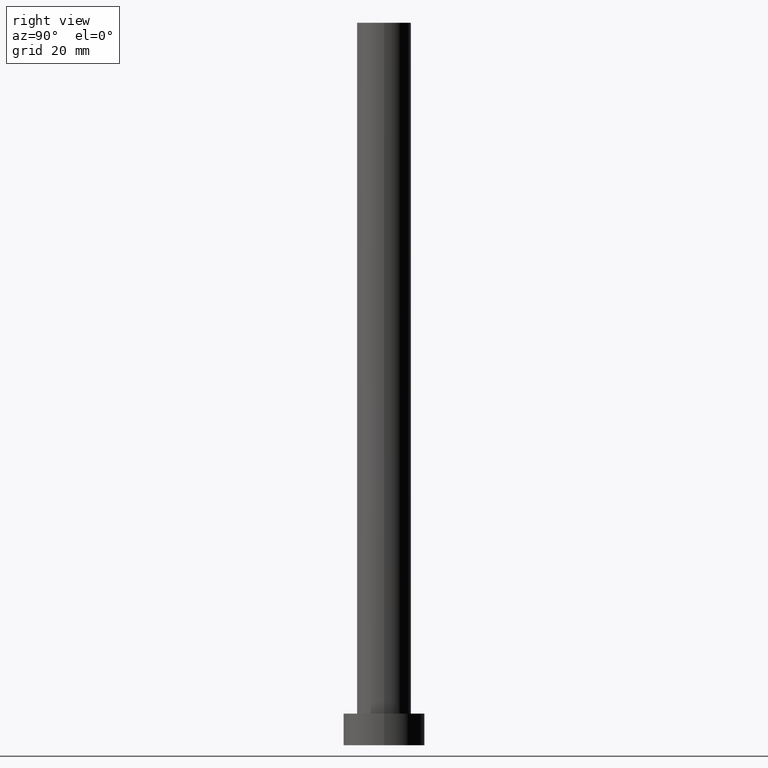
[diagram: clean part render]
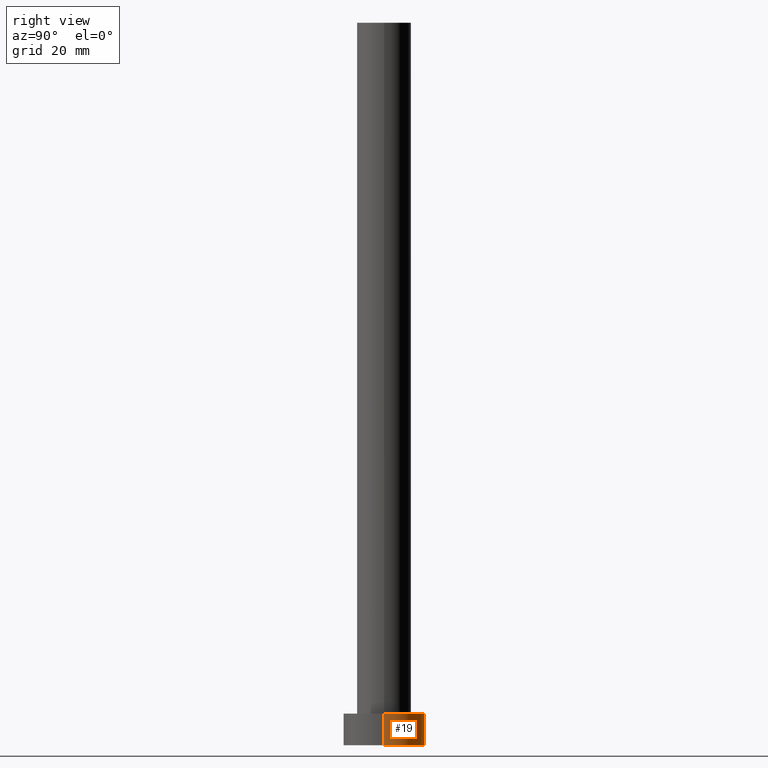
[diagram: same view with one face highlighted and labeled with its STEP entity id]
A machine part, right view. The second image highlights one B-rep face of the part: STEP entity #19.
In plain terms, the highlighted cylindrical surface (partial cylindrical patch) has radius 9 mm, axis along (-0, -0, -1).
Its self-contained STEP definition (entity closure, byte-faithful):
#2 = FACE_OUTER_BOUND ( 'NONE', #57, .T. ) ;
#4 = CARTESIAN_POINT ( 'NONE',  ( 9.000000000000000000, 1.102182119232617714E-15, 7.000000000000000000 ) ) ;
#5 = EDGE_CURVE ( 'NONE', #182, #201, #116, .T. ) ;
#11 = CARTESIAN_POINT ( 'NONE',  ( 0.000000000000000000, 0.000000000000000000, 7.000000000000000000 ) ) ;
#17 = CIRCLE ( 'NONE', #38, 9.000000000000000000 ) ;
#19 = ADVANCED_FACE ( 'NONE', ( #2 ), #162, .T. ) ;
#25 = ORIENTED_EDGE ( 'NONE', *, *, #78, .T. ) ;
#28 = CARTESIAN_POINT ( 'NONE',  ( 0.000000000000000000, 0.000000000000000000, 0.000000000000000000 ) ) ;
#33 = CARTESIAN_POINT ( 'NONE',  ( -9.000000000000000000, 0.000000000000000000, 7.000000000000000000 ) ) ;
#38 = AXIS2_PLACEMENT_3D ( 'NONE', #11, #243, #107 ) ;
#43 = VERTEX_POINT ( 'NONE', #139 ) ;
#44 = ORIENTED_EDGE ( 'NONE', *, *, #130, .F. ) ;
#57 = EDGE_LOOP ( 'NONE', ( #44, #25, #202, #63 ) ) ;
#63 = ORIENTED_EDGE ( 'NONE', *, *, #214, .F. ) ;
#67 = CARTESIAN_POINT ( 'NONE',  ( 9.000000000000000000, 1.102182119232617714E-15, 0.000000000000000000 ) ) ;
#78 = EDGE_CURVE ( 'NONE', #43, #182, #112, .T. ) ;
#81 = AXIS2_PLACEMENT_3D ( 'NONE', #142, #222, #197 ) ;
#85 = DIRECTION ( 'NONE',  ( -0.000000000000000000, -0.000000000000000000, -1.000000000000000000 ) ) ;
#86 = LINE ( 'NONE', #188, #233 ) ;
#107 = DIRECTION ( 'NONE',  ( 1.000000000000000000, 0.000000000000000000, 0.000000000000000000 ) ) ;
#112 = LINE ( 'NONE', #4, #137 ) ;
#116 = CIRCLE ( 'NONE', #124, 9.000000000000000000 ) ;
#124 = AXIS2_PLACEMENT_3D ( 'NONE', #28, #141, #183 ) ;
#128 = DIRECTION ( 'NONE',  ( -0.000000000000000000, -0.000000000000000000, -1.000000000000000000 ) ) ;
#130 = EDGE_CURVE ( 'NONE', #43, #255, #17, .T. ) ;
#137 = VECTOR ( 'NONE', #85, 1000.000000000000000 ) ;
#139 = CARTESIAN_POINT ( 'NONE',  ( 9.000000000000000000, 1.102182119232617714E-15, 7.000000000000000000 ) ) ;
#141 = DIRECTION ( 'NONE',  ( 0.000000000000000000, 0.000000000000000000, 1.000000000000000000 ) ) ;
#142 = CARTESIAN_POINT ( 'NONE',  ( 0.000000000000000000, 0.000000000000000000, 7.000000000000000000 ) ) ;
#162 = CYLINDRICAL_SURFACE ( 'NONE', #81, 9.000000000000000000 ) ;
#182 = VERTEX_POINT ( 'NONE', #67 ) ;
#183 = DIRECTION ( 'NONE',  ( 1.000000000000000000, 0.000000000000000000, 0.000000000000000000 ) ) ;
#188 = CARTESIAN_POINT ( 'NONE',  ( -9.000000000000000000, 0.000000000000000000, 7.000000000000000000 ) ) ;
#197 = DIRECTION ( 'NONE',  ( -1.000000000000000000, 0.000000000000000000, 0.000000000000000000 ) ) ;
#201 = VERTEX_POINT ( 'NONE', #242 ) ;
#202 = ORIENTED_EDGE ( 'NONE', *, *, #5, .T. ) ;
#214 = EDGE_CURVE ( 'NONE', #255, #201, #86, .T. ) ;
#222 = DIRECTION ( 'NONE',  ( -0.000000000000000000, -0.000000000000000000, -1.000000000000000000 ) ) ;
#233 = VECTOR ( 'NONE', #128, 1000.000000000000000 ) ;
#242 = CARTESIAN_POINT ( 'NONE',  ( -9.000000000000000000, 0.000000000000000000, 0.000000000000000000 ) ) ;
#243 = DIRECTION ( 'NONE',  ( 0.000000000000000000, 0.000000000000000000, 1.000000000000000000 ) ) ;
#255 = VERTEX_POINT ( 'NONE', #33 ) ;